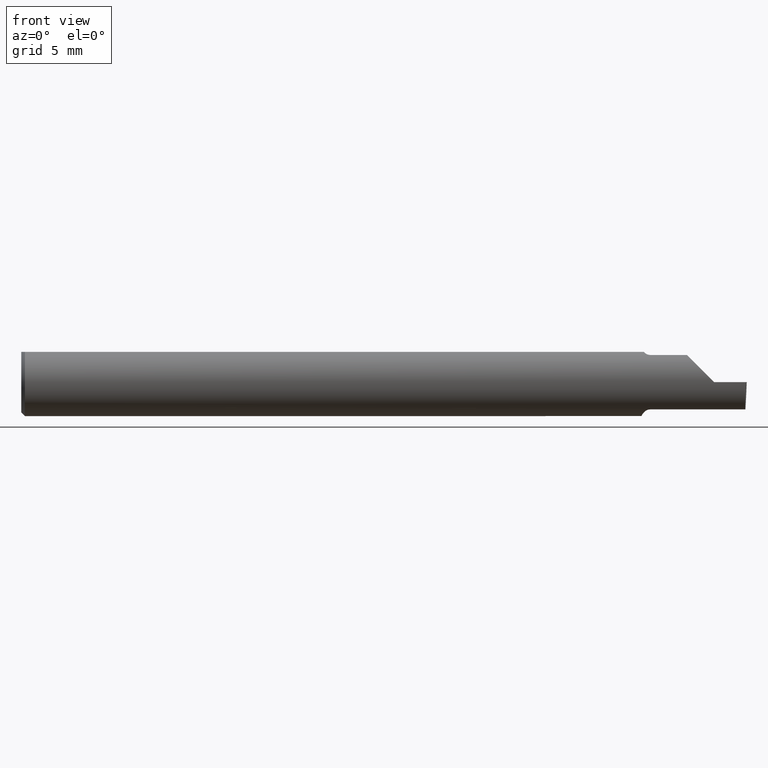
[diagram: clean part render]
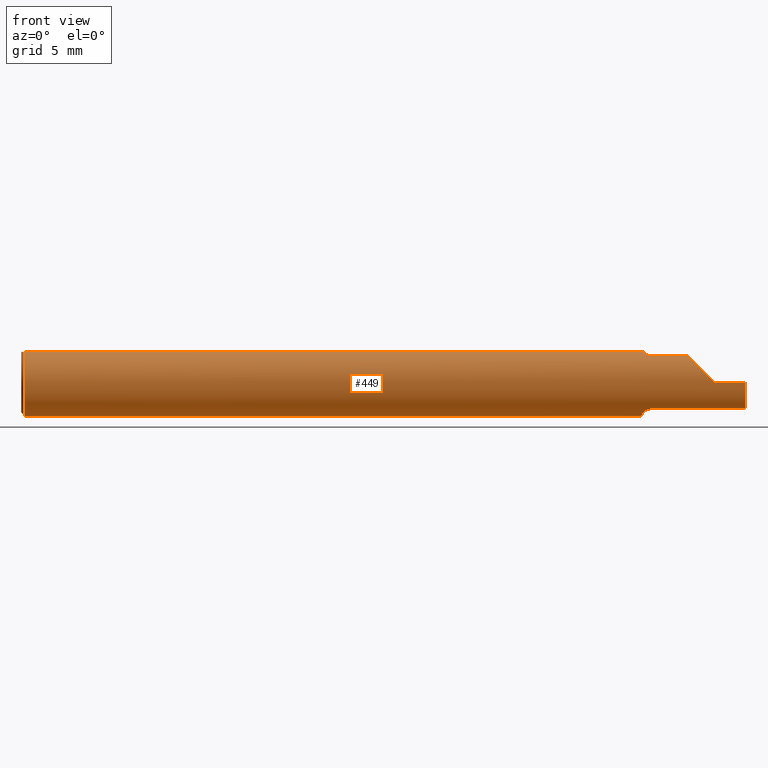
[diagram: same view with one face highlighted and labeled with its STEP entity id]
A machine part, front view. The second image highlights one B-rep face of the part: STEP entity #449.
In plain terms, the highlighted cylindrical surface (edge-blend (fillet) strip) has radius 2.3774 mm, axis along (-1, -0, -0).
Its self-contained STEP definition (entity closure, byte-faithful):
#3 = ORIENTED_EDGE ( 'NONE', *, *, #178, .T. ) ;
#16 = CARTESIAN_POINT ( 'NONE',  ( 1.717870098798738532, -0.04602557371825104909, 0.08162090280442951817 ) ) ;
#17 = LINE ( 'NONE', #657, #125 ) ;
#22 = CARTESIAN_POINT ( 'NONE',  ( 1.718379054196076838, -0.04728090127810213178, -0.08090622725813384486 ) ) ;
#23 = DIRECTION ( 'NONE',  ( 1.000000000000000000, 0.000000000000000000, 0.000000000000000000 ) ) ;
#25 = CARTESIAN_POINT ( 'NONE',  ( 1.710323329158491390, -0.01767221859896409009, -0.09207639555340685344 ) ) ;
#63 = CARTESIAN_POINT ( 'NONE',  ( 1.854690286057537163, -0.08092595952420827965, 0.05530971394246238931 ) ) ;
#65 = CARTESIAN_POINT ( 'NONE',  ( 1.709999999999999964, -0.006757276995305152960, -0.09335576686851605743 ) ) ;
#71 = CARTESIAN_POINT ( 'NONE',  ( 1.734999999999999876, -0.05810704225352093799, 0.07337936794867844226 ) ) ;
#79 = CARTESIAN_POINT ( 'NONE',  ( 1.734999999999999876, -0.05810704225352095881, -0.07337936794867842838 ) ) ;
#81 = ORIENTED_EDGE ( 'NONE', *, *, #348, .F. ) ;
#82 = CARTESIAN_POINT ( 'NONE',  ( 0.01000000000000016674, -0.04209513035969864037, 0.08359999999999988274 ) ) ;
#86 = CARTESIAN_POINT ( 'NONE',  ( 1.716206319820904991, -0.04283575577410217439, -0.08338874798717361980 ) ) ;
#95 = VERTEX_POINT ( 'NONE', #648 ) ;
#106 = B_SPLINE_CURVE_WITH_KNOTS ( 'NONE', 3,
 ( #296, #16, #241, #456, #313, #142, #624, #369 ),
 .UNSPECIFIED., .F., .F.,
 ( 4, 2, 2, 4 ),
 ( 4.741820243506000245E-07, 0.0003579866703973730020, 0.0005367429145838906006, 0.0007154991587704081450 ),
 .UNSPECIFIED. ) ;
#115 = DIRECTION ( 'NONE',  ( 1.000000000000000000, 0.000000000000000000, 0.000000000000000000 ) ) ;
#117 = DIRECTION ( 'NONE',  ( -1.000000000000000000, -0.000000000000000000, -0.000000000000000000 ) ) ;
#119 = EDGE_CURVE ( 'NONE', #139, #168, #325, .T. ) ;
#121 = CARTESIAN_POINT ( 'NONE',  ( 0.01000000000000016674, 0.000000000000000000, 0.000000000000000000 ) ) ;
#123 = CARTESIAN_POINT ( 'NONE',  ( 0.000000000000000000, 0.04209513035969864037, 0.08359999999999988274 ) ) ;
#124 = AXIS2_PLACEMENT_3D ( 'NONE', #121, #344, #201 ) ;
#125 = VECTOR ( 'NONE', #236, 39.37007874015748143 ) ;
#128 = LINE ( 'NONE', #123, #292 ) ;
#131 = EDGE_CURVE ( 'NONE', #464, #269, #164, .T. ) ;
#133 = CARTESIAN_POINT ( 'NONE',  ( 1.854736604999999816, -0.05810704225352100738, 0.07337936794867837287 ) ) ;
#136 = ORIENTED_EDGE ( 'NONE', *, *, #548, .F. ) ;
#139 = VERTEX_POINT ( 'NONE', #435 ) ;
#142 = CARTESIAN_POINT ( 'NONE',  ( 1.730292432600753827, -0.05747478081012615675, 0.07388601572377859195 ) ) ;
#153 = CARTESIAN_POINT ( 'NONE',  ( 1.997012998164632958, -0.09360000000000001652, 0.000000000000000000 ) ) ;
#164 = LINE ( 'NONE', #482, #658 ) ;
#168 = VERTEX_POINT ( 'NONE', #226 ) ;
#178 = EDGE_CURVE ( 'NONE', #487, #691, #605, .T. ) ;
#183 = EDGE_CURVE ( 'NONE', #352, #95, #233, .T. ) ;
#185 = CARTESIAN_POINT ( 'NONE',  ( 1.711762116932663558, -0.02818790137206256263, -0.08941930521177116065 ) ) ;
#188 = CARTESIAN_POINT ( 'NONE',  ( 1.712856118429613828, -0.03323074941465632010, -0.08766015375840498225 ) ) ;
#196 = DIRECTION ( 'NONE',  ( 0.000000000000000000, 0.000000000000000000, 1.000000000000000000 ) ) ;
#201 = DIRECTION ( 'NONE',  ( 0.000000000000000000, 0.000000000000000000, -1.000000000000000000 ) ) ;
#217 = ORIENTED_EDGE ( 'NONE', *, *, #458, .F. ) ;
#221 = AXIS2_PLACEMENT_3D ( 'NONE', #307, #23, #247 ) ;
#226 = CARTESIAN_POINT ( 'NONE',  ( 1.997012998164632958, -0.09360000000000001652, 0.000000000000000000 ) ) ;
#231 = DIRECTION ( 'NONE',  ( 1.000000000000000000, 1.613967815530507848E-16, 0.000000000000000000 ) ) ;
#232 = ORIENTED_EDGE ( 'NONE', *, *, #622, .F. ) ;
#233 = CIRCLE ( 'NONE', #618, 0.09360000000000001652 ) ;
#236 = DIRECTION ( 'NONE',  ( -1.000000000000000000, -0.000000000000000000, -0.000000000000000000 ) ) ;
#241 = CARTESIAN_POINT ( 'NONE',  ( 1.720033121973953083, -0.04963861219531606056, 0.07943694244057655784 ) ) ;
#247 = DIRECTION ( 'NONE',  ( 0.000000000000000000, 0.000000000000000000, -1.000000000000000000 ) ) ;
#249 = CARTESIAN_POINT ( 'NONE',  ( 0.01000000000000016674, 0.04209513035969864037, 0.08359999999999988274 ) ) ;
#256 = CARTESIAN_POINT ( 'NONE',  ( 1.729541435880794120, -0.05724930034136781198, -0.07406832579512054315 ) ) ;
#269 = VERTEX_POINT ( 'NONE', #452 ) ;
#282 = VERTEX_POINT ( 'NONE', #454 ) ;
#287 = CARTESIAN_POINT ( 'NONE',  ( 1.836620632051321200, -0.05810704225352119473, 0.07337936794867828960 ) ) ;
#292 = VECTOR ( 'NONE', #117, 39.37007874015748143 ) ;
#296 = CARTESIAN_POINT ( 'NONE',  ( 1.716129652885479473, -0.04209513035970122857, 0.08359999999999991049 ) ) ;
#301 = EDGE_CURVE ( 'NONE', #168, #487, #17, .T. ) ;
#306 = CARTESIAN_POINT ( 'NONE',  ( 1.910000000000000142, -0.09360000000000005815, 1.102182119232621301E-17 ) ) ;
#307 = CARTESIAN_POINT ( 'NONE',  ( 0.01000000000000016674, 0.000000000000000000, 0.000000000000000000 ) ) ;
#312 = AXIS2_PLACEMENT_3D ( 'NONE', #630, #679, #196 ) ;
#313 = CARTESIAN_POINT ( 'NONE',  ( 1.726308147845286634, -0.05549979236676334110, 0.07538081185522389760 ) ) ;
#315 = ORIENTED_EDGE ( 'NONE', *, *, #183, .F. ) ;
#316 = CIRCLE ( 'NONE', #124, 0.09360000000000001652 ) ;
#317 = CYLINDRICAL_SURFACE ( 'NONE', #312, 0.09360000000000001652 ) ;
#320 = ORIENTED_EDGE ( 'NONE', *, *, #119, .T. ) ;
#325 =( BOUNDED_CURVE ( )  B_SPLINE_CURVE ( 3, ( #586, #655, #534, #153 ),
 .UNSPECIFIED., .F., .T. ) 
 B_SPLINE_CURVE_WITH_KNOTS ( ( 4, 4 ),
 ( 0.2063001339125765943, 1.107331509589607910 ),
 .UNSPECIFIED. ) 
 CURVE ( )  GEOMETRIC_REPRESENTATION_ITEM ( )  RATIONAL_B_SPLINE_CURVE ( ( 1.000000000000000000, 0.9334817841311872089, 0.9334817841311872089, 1.000000000000000000 ) ) 
 REPRESENTATION_ITEM ( '' )  );
#328 = CARTESIAN_POINT ( 'NONE',  ( 1.880893035518783396, -0.09360000000000001652, 0.02910696448121676688 ) ) ;
#338 = CARTESIAN_POINT ( 'NONE',  ( 1.709999999999999964, 0.000000000000000000, 0.000000000000000000 ) ) ;
#344 = DIRECTION ( 'NONE',  ( 1.000000000000000000, 0.000000000000000000, 0.000000000000000000 ) ) ;
#348 = EDGE_CURVE ( 'NONE', #95, #469, #128, .T. ) ;
#351 = CIRCLE ( 'NONE', #221, 0.09360000000000001652 ) ;
#352 = VERTEX_POINT ( 'NONE', #65 ) ;
#369 = CARTESIAN_POINT ( 'NONE',  ( 1.734999999999999876, -0.05810704225352093799, 0.07337936794867844226 ) ) ;
#371 = CARTESIAN_POINT ( 'NONE',  ( 1.836620632051321200, -0.05810704225352119473, 0.07337936794867828960 ) ) ;
#399 = EDGE_CURVE ( 'NONE', #464, #450, #316, .T. ) ;
#412 = CARTESIAN_POINT ( 'NONE',  ( 1.854736604999999816, -0.05810704225352100738, -0.07337936794867837287 ) ) ;
#435 = CARTESIAN_POINT ( 'NONE',  ( 1.995069675717878299, -0.05810704225352097962, -0.07337936794867837287 ) ) ;
#443 = ORIENTED_EDGE ( 'NONE', *, *, #399, .T. ) ;
#449 = ADVANCED_FACE ( 'NONE', ( #686 ), #317, .T. ) ;
#450 = VERTEX_POINT ( 'NONE', #575 ) ;
#452 = CARTESIAN_POINT ( 'NONE',  ( 1.716129652885479473, -0.04209513035970122857, 0.08359999999999991049 ) ) ;
#454 = CARTESIAN_POINT ( 'NONE',  ( 1.734999999999999876, -0.05810704225352095881, -0.07337936794867842838 ) ) ;
#456 = CARTESIAN_POINT ( 'NONE',  ( 1.724565501274438972, -0.05415466354550829697, 0.07636456853488583774 ) ) ;
#458 = EDGE_CURVE ( 'NONE', #535, #691, #471, .T. ) ;
#463 = EDGE_LOOP ( 'NONE', ( #232, #320, #550, #3, #217, #136, #668, #443, #694, #81, #315, #685 ) ) ;
#464 = VERTEX_POINT ( 'NONE', #82 ) ;
#465 = CARTESIAN_POINT ( 'NONE',  ( 1.709999999999999742, -0.01220003991882275506, -0.09296180880970877913 ) ) ;
#469 = VERTEX_POINT ( 'NONE', #249 ) ;
#471 = LINE ( 'NONE', #133, #609 ) ;
#482 = CARTESIAN_POINT ( 'NONE',  ( 0.000000000000000000, -0.04209513035969864037, 0.08359999999999988274 ) ) ;
#487 = VERTEX_POINT ( 'NONE', #306 ) ;
#501 = EDGE_CURVE ( 'NONE', #282, #352, #643, .T. ) ;
#508 = CARTESIAN_POINT ( 'NONE',  ( 1.725047675231717204, -0.05464443219068141483, -0.07601042893068211959 ) ) ;
#511 = DIRECTION ( 'NONE',  ( 1.000000000000000000, 1.613967815530507848E-16, 0.000000000000000000 ) ) ;
#515 = CARTESIAN_POINT ( 'NONE',  ( 1.709999999999999964, -0.006757276995305152960, -0.09335576686851605743 ) ) ;
#534 = CARTESIAN_POINT ( 'NONE',  ( 1.995996405735428691, -0.09360000000000001652, -0.02910696448121684321 ) ) ;
#535 = VERTEX_POINT ( 'NONE', #71 ) ;
#546 = CARTESIAN_POINT ( 'NONE',  ( 1.910000000000000142, -0.09360000000000005815, 1.102182119232621301E-17 ) ) ;
#548 = EDGE_CURVE ( 'NONE', #269, #535, #106, .T. ) ;
#550 = ORIENTED_EDGE ( 'NONE', *, *, #301, .T. ) ;
#575 = CARTESIAN_POINT ( 'NONE',  ( 0.01000000000000016674, 0.000000000000000000, -0.09360000000000001652 ) ) ;
#586 = CARTESIAN_POINT ( 'NONE',  ( 1.995069675717878299, -0.05810704225352097962, -0.07337936794867837287 ) ) ;
#598 = EDGE_CURVE ( 'NONE', #450, #469, #351, .T. ) ;
#605 =( BOUNDED_CURVE ( )  B_SPLINE_CURVE ( 3, ( #546, #328, #63, #287 ),
 .UNSPECIFIED., .F., .T. ) 
 B_SPLINE_CURVE_WITH_KNOTS ( ( 4, 4 ),
 ( 4.712388980384689674, 5.613420356061718408 ),
 .UNSPECIFIED. ) 
 CURVE ( )  GEOMETRIC_REPRESENTATION_ITEM ( )  RATIONAL_B_SPLINE_CURVE ( ( 1.000000000000000000, 0.9334817841311876530, 0.9334817841311876530, 1.000000000000000000 ) ) 
 REPRESENTATION_ITEM ( '' )  );
#609 = VECTOR ( 'NONE', #511, 39.37007874015748143 ) ;
#618 = AXIS2_PLACEMENT_3D ( 'NONE', #338, #231, #636 ) ;
#622 = EDGE_CURVE ( 'NONE', #139, #282, #674, .T. ) ;
#623 = CARTESIAN_POINT ( 'NONE',  ( 1.723195691242756178, -0.05295078397730234449, -0.07721567059148480572 ) ) ;
#624 = CARTESIAN_POINT ( 'NONE',  ( 1.732603832840146074, -0.05810704225352093799, 0.07337936794867844226 ) ) ;
#630 = CARTESIAN_POINT ( 'NONE',  ( 0.000000000000000000, 0.000000000000000000, 0.000000000000000000 ) ) ;
#636 = DIRECTION ( 'NONE',  ( 0.000000000000000000, 1.000000000000000000, 0.000000000000000000 ) ) ;
#643 = B_SPLINE_CURVE_WITH_KNOTS ( 'NONE', 3,
 ( #79, #671, #256, #508, #623, #22, #86, #188, #185, #25, #465, #515 ),
 .UNSPECIFIED., .F., .F.,
 ( 4, 2, 2, 2, 2, 4 ),
 ( 1.968126669309073504E-07, 0.0002104342718631984689, 0.0004206717310594660676, 0.0008411466494520005062, 0.001261621567844535162, 0.001682096486237069600 ),
 .UNSPECIFIED. ) ;
#648 = CARTESIAN_POINT ( 'NONE',  ( 1.709999999999999964, 0.04209513035969864037, 0.08359999999999988274 ) ) ;
#655 = CARTESIAN_POINT ( 'NONE',  ( 1.995302472377617153, -0.08092595952420823802, -0.05530971394246255585 ) ) ;
#657 = CARTESIAN_POINT ( 'NONE',  ( 2.999519565323742037E-32, -0.09359999999999998876, 2.449293598294716768E-16 ) ) ;
#658 = VECTOR ( 'NONE', #115, 39.37007874015748143 ) ;
#668 = ORIENTED_EDGE ( 'NONE', *, *, #131, .F. ) ;
#671 = CARTESIAN_POINT ( 'NONE',  ( 1.732196475348975584, -0.05810704225352093105, -0.07337936794867844226 ) ) ;
#674 = LINE ( 'NONE', #412, #689 ) ;
#679 = DIRECTION ( 'NONE',  ( -1.000000000000000000, -0.000000000000000000, -0.000000000000000000 ) ) ;
#685 = ORIENTED_EDGE ( 'NONE', *, *, #501, .F. ) ;
#686 = FACE_OUTER_BOUND ( 'NONE', #463, .T. ) ;
#687 = DIRECTION ( 'NONE',  ( -1.000000000000000000, -1.613967815530507848E-16, -0.000000000000000000 ) ) ;
#689 = VECTOR ( 'NONE', #687, 39.37007874015748143 ) ;
#691 = VERTEX_POINT ( 'NONE', #371 ) ;
#694 = ORIENTED_EDGE ( 'NONE', *, *, #598, .T. ) ;